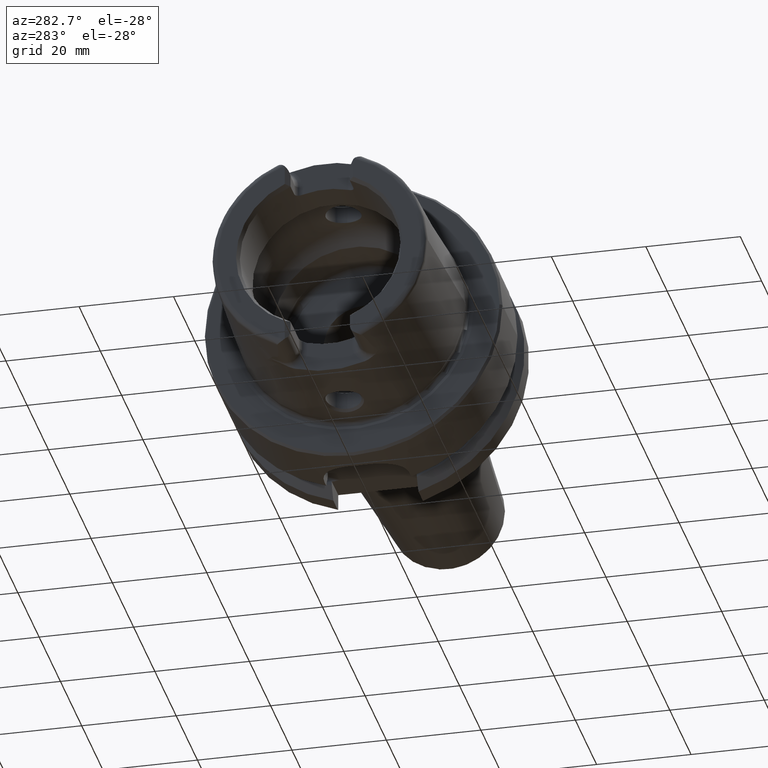
[diagram: clean part render]
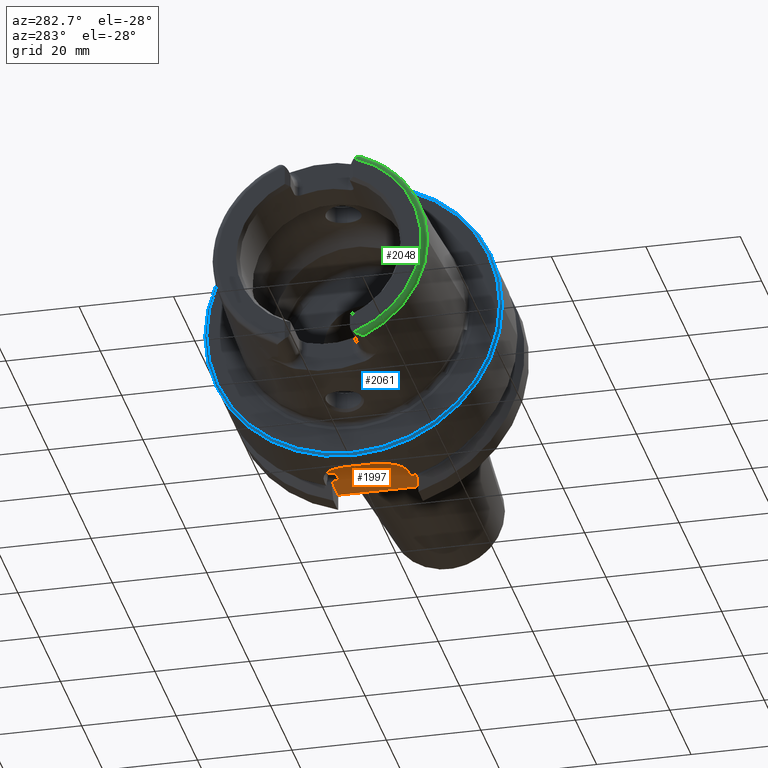
[diagram: same view with three faces highlighted in distinct colors, each labeled with its STEP entity id]
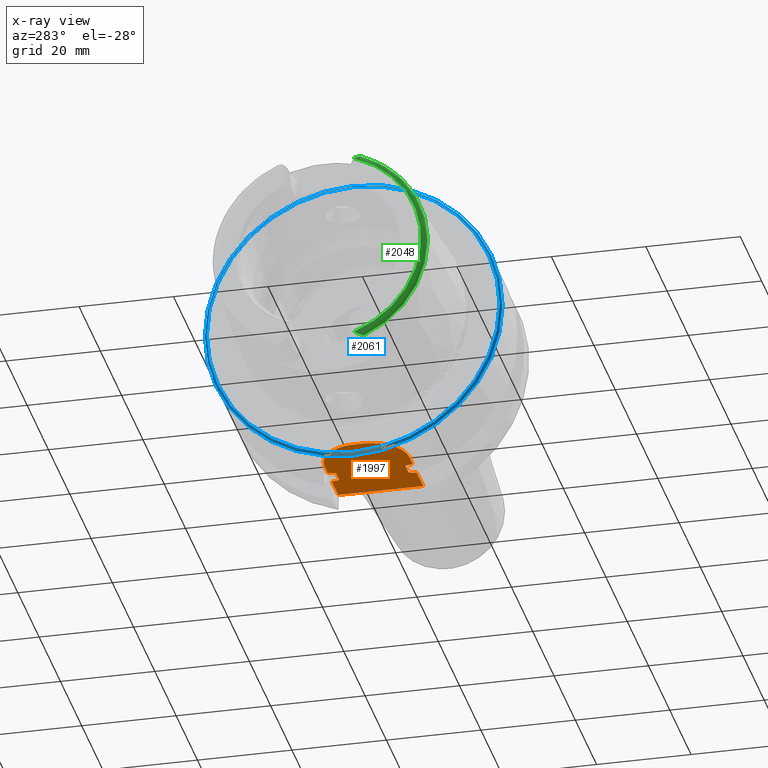
[diagram: x-ray of the same camera — body ghosted, the three highlighted faces saturated]
A machine part, auxiliary view with three faces highlighted in distinct colors.
The next image is the same camera in x-ray (body ghosted, the three faces saturated) — at least one of them is partly hidden behind the body in this view.
Their STEP definitions:

[orange] entity #1997 — the highlighted planar face has unit normal (0, 0, 1).
#67=B_SPLINE_CURVE_WITH_KNOTS('',3,(#3952,#3953,#3954,#3955,#3956,#3957,
#3958,#3959,#3960,#3961),.UNSPECIFIED.,.F.,.F.,(4,2,2,2,4),(0.15835931245442,
0.289228035148658,0.316691561230897,0.323545183976989,0.328785692776271),
 .UNSPECIFIED.);
#68=B_SPLINE_CURVE_WITH_KNOTS('',3,(#3973,#3974,#3975,#3976,#3977,#3978,
#3979,#3980,#3981,#3982),.UNSPECIFIED.,.F.,.F.,(4,2,2,2,4),(0.328785692776271,
0.334026201575553,0.340879824321645,0.368343350403884,0.499212073098123),
 .UNSPECIFIED.);
#69=B_SPLINE_CURVE_WITH_KNOTS('',3,(#3985,#3986,#3987,#3988,#3989,#3990,
#3991,#3992,#3993,#3994),.UNSPECIFIED.,.F.,.F.,(4,2,2,2,4),(0.15835931245442,
0.289228035148658,0.316691561230897,0.323545183976988,0.32878569277627),
 .UNSPECIFIED.);
#70=B_SPLINE_CURVE_WITH_KNOTS('',3,(#3996,#3997,#3998,#3999,#4000,#4001,
#4002,#4003,#4004,#4005),.UNSPECIFIED.,.F.,.F.,(4,2,2,2,4),(0.32878569277627,
0.334026201575552,0.340879824321644,0.368343350403882,0.49921207309812),
 .UNSPECIFIED.);
#140=LINE('',#2994,#246);
#194=LINE('',#3906,#300);
#196=LINE('',#3936,#302);
#199=LINE('',#3963,#305);
#200=LINE('',#3967,#306);
#201=LINE('',#3971,#307);
#202=LINE('',#3984,#308);
#203=LINE('',#4006,#309);
#246=VECTOR('',#2397,10.);
#300=VECTOR('',#2631,10.);
#302=VECTOR('',#2635,10.);
#305=VECTOR('',#2640,10.);
#306=VECTOR('',#2643,10.);
#307=VECTOR('',#2646,10.);
#308=VECTOR('',#2647,10.);
#309=VECTOR('',#2648,10.);
#444=FACE_OUTER_BOUND('',#570,.T.);
#570=EDGE_LOOP('',(#1551,#1552,#1553,#1554,#1555,#1556,#1557,#1558,#1559,
#1560,#1561,#1562,#1563,#1564));
#704=CIRCLE('',#2206,8.);
#705=CIRCLE('',#2207,8.);
#784=VERTEX_POINT('',#2991);
#785=VERTEX_POINT('',#2993);
#895=VERTEX_POINT('',#3901);
#899=VERTEX_POINT('',#3935);
#903=VERTEX_POINT('',#3950);
#904=VERTEX_POINT('',#3951);
#905=VERTEX_POINT('',#3962);
#906=VERTEX_POINT('',#3964);
#907=VERTEX_POINT('',#3966);
#908=VERTEX_POINT('',#3968);
#909=VERTEX_POINT('',#3970);
#910=VERTEX_POINT('',#3972);
#911=VERTEX_POINT('',#3983);
#912=VERTEX_POINT('',#3995);
#992=EDGE_CURVE('',#784,#785,#140,.T.);
#1140=EDGE_CURVE('',#895,#784,#194,.T.);
#1145=EDGE_CURVE('',#785,#899,#196,.T.);
#1150=EDGE_CURVE('',#903,#904,#67,.T.);
#1151=EDGE_CURVE('',#905,#903,#199,.T.);
#1152=EDGE_CURVE('',#906,#905,#704,.T.);
#1153=EDGE_CURVE('',#907,#906,#200,.T.);
#1154=EDGE_CURVE('',#908,#907,#705,.T.);
#1155=EDGE_CURVE('',#909,#908,#201,.T.);
#1156=EDGE_CURVE('',#910,#909,#68,.T.);
#1157=EDGE_CURVE('',#911,#910,#202,.T.);
#1158=EDGE_CURVE('',#899,#911,#69,.T.);
#1159=EDGE_CURVE('',#912,#895,#70,.T.);
#1160=EDGE_CURVE('',#904,#912,#203,.T.);
#1551=ORIENTED_EDGE('',*,*,#1150,.F.);
#1552=ORIENTED_EDGE('',*,*,#1151,.F.);
#1553=ORIENTED_EDGE('',*,*,#1152,.F.);
#1554=ORIENTED_EDGE('',*,*,#1153,.F.);
#1555=ORIENTED_EDGE('',*,*,#1154,.F.);
#1556=ORIENTED_EDGE('',*,*,#1155,.F.);
#1557=ORIENTED_EDGE('',*,*,#1156,.F.);
#1558=ORIENTED_EDGE('',*,*,#1157,.F.);
#1559=ORIENTED_EDGE('',*,*,#1158,.F.);
#1560=ORIENTED_EDGE('',*,*,#1145,.F.);
#1561=ORIENTED_EDGE('',*,*,#992,.F.);
#1562=ORIENTED_EDGE('',*,*,#1140,.F.);
#1563=ORIENTED_EDGE('',*,*,#1159,.F.);
#1564=ORIENTED_EDGE('',*,*,#1160,.F.);
#1926=PLANE('',#2205);
#1997=ADVANCED_FACE('',(#444),#1926,.F.);
#2205=AXIS2_PLACEMENT_3D('',#3949,#2638,#2639);
#2206=AXIS2_PLACEMENT_3D('',#3965,#2641,#2642);
#2207=AXIS2_PLACEMENT_3D('',#3969,#2644,#2645);
#2397=DIRECTION('',(0.,1.,0.));
#2631=DIRECTION('',(1.,-2.56205313375036E-16,0.));
#2635=DIRECTION('',(-1.,2.56205313375036E-16,0.));
#2638=DIRECTION('center_axis',(0.,0.,1.));
#2639=DIRECTION('ref_axis',(1.,0.,0.));
#2640=DIRECTION('',(1.,-2.56205313375036E-16,0.));
#2641=DIRECTION('center_axis',(0.,0.,1.));
#2642=DIRECTION('ref_axis',(-1.,-2.42861286636753E-16,0.));
#2643=DIRECTION('',(0.,-1.,0.));
#2644=DIRECTION('center_axis',(0.,0.,1.));
#2645=DIRECTION('ref_axis',(0.,1.,0.));
#2646=DIRECTION('',(-1.,2.56205313375036E-16,0.));
#2647=DIRECTION('',(-1.,0.,0.));
#2648=DIRECTION('',(1.,0.,0.));
#2991=CARTESIAN_POINT('',(26.,-9.,-26.5));
#2993=CARTESIAN_POINT('',(26.,9.,-26.5));
#2994=CARTESIAN_POINT('',(26.,1.94289029309402E-15,-26.5));
#3901=CARTESIAN_POINT('',(19.8748205133158,-9.,-26.5));
#3906=CARTESIAN_POINT('',(13.,-9.,-26.5));
#3935=CARTESIAN_POINT('',(19.8748205133158,9.,-26.5));
#3936=CARTESIAN_POINT('',(26.,9.,-26.5));
#3949=CARTESIAN_POINT('Origin',(15.5,3.88578058618805E-15,-26.5));
#3950=CARTESIAN_POINT('',(16.1251794866842,-9.,-26.5));
#3951=CARTESIAN_POINT('',(16.625,-7.34846922834952,-26.5));
#3952=CARTESIAN_POINT('Ctrl Pts',(16.1251794866842,-9.,-26.5));
#3953=CARTESIAN_POINT('Ctrl Pts',(16.12898241235,-8.55877260788573,-26.5));
#3954=CARTESIAN_POINT('Ctrl Pts',(16.1819334034884,-8.04136347440828,-26.5));
#3955=CARTESIAN_POINT('Ctrl Pts',(16.3906456489289,-7.5566112023157,-26.5));
#3956=CARTESIAN_POINT('Ctrl Pts',(16.4411490019356,-7.4590543697872,-26.5));
#3957=CARTESIAN_POINT('Ctrl Pts',(16.5270295504762,-7.38349170057081,-26.5));
#3958=CARTESIAN_POINT('Ctrl Pts',(16.5496994821687,-7.36807649661538,-26.5));
#3959=CARTESIAN_POINT('Ctrl Pts',(16.587038394856,-7.35287762173868,-26.5));
#3960=CARTESIAN_POINT('Ctrl Pts',(16.6075316373357,-7.34846922834952,-26.5));
#3961=CARTESIAN_POINT('Ctrl Pts',(16.625,-7.34846922834952,-26.5));
#3962=CARTESIAN_POINT('',(13.,-9.,-26.5));
#3963=CARTESIAN_POINT('',(13.,-9.,-26.5));
#3964=CARTESIAN_POINT('',(5.,-0.999999999999999,-26.5));
#3965=CARTESIAN_POINT('Origin',(13.,-0.999999999999997,-26.5));
#3966=CARTESIAN_POINT('',(5.,1.,-26.5));
#3967=CARTESIAN_POINT('',(5.,1.,-26.5));
#3968=CARTESIAN_POINT('',(13.,9.00000000000001,-26.5));
#3969=CARTESIAN_POINT('Origin',(13.,1.,-26.5));
#3970=CARTESIAN_POINT('',(16.1251794866842,9.,-26.5));
#3971=CARTESIAN_POINT('',(26.,9.,-26.5));
#3972=CARTESIAN_POINT('',(16.625,7.34846922834952,-26.5));
#3973=CARTESIAN_POINT('Ctrl Pts',(16.625,7.34846922834952,-26.5));
#3974=CARTESIAN_POINT('Ctrl Pts',(16.6075316373357,7.34846922834952,-26.5));
#3975=CARTESIAN_POINT('Ctrl Pts',(16.587038394856,7.35287762173868,-26.5));
#3976=CARTESIAN_POINT('Ctrl Pts',(16.5496994821687,7.36807649661538,-26.5));
#3977=CARTESIAN_POINT('Ctrl Pts',(16.5270295504762,7.38349170057081,-26.5));
#3978=CARTESIAN_POINT('Ctrl Pts',(16.4411490019356,7.4590543697872,-26.5));
#3979=CARTESIAN_POINT('Ctrl Pts',(16.3906456489289,7.5566112023157,-26.5));
#3980=CARTESIAN_POINT('Ctrl Pts',(16.1819334034884,8.04136347440828,-26.5));
#3981=CARTESIAN_POINT('Ctrl Pts',(16.12898241235,8.55877260788573,-26.5));
#3982=CARTESIAN_POINT('Ctrl Pts',(16.1251794866842,9.,-26.5));
#3983=CARTESIAN_POINT('',(19.375,7.34846922834952,-26.5));
#3984=CARTESIAN_POINT('',(18.,7.34846922834952,-26.5));
#3985=CARTESIAN_POINT('Ctrl Pts',(19.8748205133158,9.,-26.5));
#3986=CARTESIAN_POINT('Ctrl Pts',(19.87101758765,8.55877260788573,-26.5));
#3987=CARTESIAN_POINT('Ctrl Pts',(19.8180665965116,8.04136347440828,-26.5));
#3988=CARTESIAN_POINT('Ctrl Pts',(19.6093543510711,7.5566112023157,-26.5));
#3989=CARTESIAN_POINT('Ctrl Pts',(19.5588509980644,7.45905436978719,-26.5));
#3990=CARTESIAN_POINT('Ctrl Pts',(19.4729704495238,7.38349170057082,-26.5));
#3991=CARTESIAN_POINT('Ctrl Pts',(19.4503005178313,7.3680764966154,-26.5));
#3992=CARTESIAN_POINT('Ctrl Pts',(19.412961605144,7.35287762173869,-26.5));
#3993=CARTESIAN_POINT('Ctrl Pts',(19.3924683626643,7.34846922834952,-26.5));
#3994=CARTESIAN_POINT('Ctrl Pts',(19.375,7.34846922834952,-26.5));
#3995=CARTESIAN_POINT('',(19.375,-7.34846922834952,-26.5));
#3996=CARTESIAN_POINT('Ctrl Pts',(19.375,-7.34846922834952,-26.5));
#3997=CARTESIAN_POINT('Ctrl Pts',(19.3924683626643,-7.34846922834952,-26.5));
#3998=CARTESIAN_POINT('Ctrl Pts',(19.412961605144,-7.35287762173869,-26.5));
#3999=CARTESIAN_POINT('Ctrl Pts',(19.4503005178313,-7.3680764966154,-26.5));
#4000=CARTESIAN_POINT('Ctrl Pts',(19.4729704495238,-7.38349170057082,-26.5));
#4001=CARTESIAN_POINT('Ctrl Pts',(19.5588509980644,-7.45905436978719,-26.5));
#4002=CARTESIAN_POINT('Ctrl Pts',(19.6093543510711,-7.5566112023157,-26.5));
#4003=CARTESIAN_POINT('Ctrl Pts',(19.8180665965116,-8.04136347440828,-26.5));
#4004=CARTESIAN_POINT('Ctrl Pts',(19.87101758765,-8.55877260788573,-26.5));
#4005=CARTESIAN_POINT('Ctrl Pts',(19.8748205133158,-9.,-26.5));
#4006=CARTESIAN_POINT('',(18.,-7.34846922834952,-26.5));

[blue] entity #2061 — the highlighted conical surface has half-angle 45 deg.
#109=CONICAL_SURFACE('',#2329,31.25,0.785398163397447);
#237=LINE('',#4388,#343);
#343=VECTOR('',#2926,31.25);
#508=FACE_OUTER_BOUND('',#639,.T.);
#639=EDGE_LOOP('',(#1884,#1885,#1886,#1887));
#722=CIRCLE('',#2251,31.5);
#763=CIRCLE('',#2328,31.);
#940=VERTEX_POINT('',#4229);
#966=VERTEX_POINT('',#4385);
#1216=EDGE_CURVE('',#940,#940,#722,.T.);
#1273=EDGE_CURVE('',#966,#966,#763,.T.);
#1274=EDGE_CURVE('',#940,#966,#237,.T.);
#1884=ORIENTED_EDGE('',*,*,#1216,.F.);
#1885=ORIENTED_EDGE('',*,*,#1274,.T.);
#1886=ORIENTED_EDGE('',*,*,#1273,.T.);
#1887=ORIENTED_EDGE('',*,*,#1274,.F.);
#2061=ADVANCED_FACE('',(#508),#109,.T.);
#2251=AXIS2_PLACEMENT_3D('',#4231,#2756,#2757);
#2328=AXIS2_PLACEMENT_3D('',#4386,#2922,#2923);
#2329=AXIS2_PLACEMENT_3D('',#4387,#2924,#2925);
#2756=DIRECTION('center_axis',(1.,0.,0.));
#2757=DIRECTION('ref_axis',(0.,0.,-1.));
#2922=DIRECTION('center_axis',(1.,0.,0.));
#2923=DIRECTION('ref_axis',(0.,0.,-1.));
#2924=DIRECTION('center_axis',(1.,0.,0.));
#2925=DIRECTION('ref_axis',(0.,1.,0.));
#2926=DIRECTION('',(-0.707106781186549,0.707106781186546,8.65956056235492E-17));
#4229=CARTESIAN_POINT('',(0.5,-31.5,-3.85763741731416E-15));
#4231=CARTESIAN_POINT('Origin',(0.5,0.,0.));
#4385=CARTESIAN_POINT('',(-5.89805981832114E-16,-31.,-3.7964050773568E-15));
#4386=CARTESIAN_POINT('Origin',(0.,0.,0.));
#4387=CARTESIAN_POINT('Origin',(0.25,0.,0.));
#4388=CARTESIAN_POINT('',(0.25,-31.25,-3.82702124733548E-15));

[green] entity #2048 — the highlighted toroidal blend (fillet) surface has major radius 21.576 mm and minor (blend) radius 1.2 mm.
#32=B_SPLINE_CURVE_WITH_KNOTS('',3,(#3062,#3063,#3064,#3065,#3066,#3067,
#3068,#3069,#3070,#3071,#3072,#3073),.UNSPECIFIED.,.F.,.F.,(4,2,2,2,2,4),
(-0.196612183526961,-0.162100751777108,-0.0988537843219417,-0.0492481970353068,
-0.0201985054494333,0.),.UNSPECIFIED.);
#35=B_SPLINE_CURVE_WITH_KNOTS('',3,(#3153,#3154,#3155,#3156,#3157,#3158,
#3159,#3160,#3161,#3162,#3163,#3164),.UNSPECIFIED.,.F.,.F.,(4,2,2,2,2,4),
(-0.440016298339346,-0.413819168091726,-0.38684223146412,-0.314176502280688,
-0.242048966230796,-0.191409762337977),.UNSPECIFIED.);
#129=TOROIDAL_SURFACE('',#2298,21.5760400159857,1.2);
#495=FACE_OUTER_BOUND('',#622,.T.);
#622=EDGE_LOOP('',(#1829,#1830,#1831,#1832,#1833));
#676=CIRCLE('',#2157,22.7745368271334);
#680=CIRCLE('',#2161,22.7745368271334);
#744=CIRCLE('',#2295,21.5760400159857);
#804=VERTEX_POINT('',#3042);
#805=VERTEX_POINT('',#3061);
#824=VERTEX_POINT('',#3150);
#825=VERTEX_POINT('',#3152);
#840=VERTEX_POINT('',#3353);
#1016=EDGE_CURVE('',#805,#804,#32,.T.);
#1041=EDGE_CURVE('',#825,#824,#35,.T.);
#1061=EDGE_CURVE('',#840,#804,#676,.T.);
#1073=EDGE_CURVE('',#825,#840,#680,.T.);
#1249=EDGE_CURVE('',#824,#805,#744,.T.);
#1829=ORIENTED_EDGE('',*,*,#1041,.T.);
#1830=ORIENTED_EDGE('',*,*,#1249,.T.);
#1831=ORIENTED_EDGE('',*,*,#1016,.T.);
#1832=ORIENTED_EDGE('',*,*,#1061,.F.);
#1833=ORIENTED_EDGE('',*,*,#1073,.F.);
#2048=ADVANCED_FACE('',(#495),#129,.T.);
#2157=AXIS2_PLACEMENT_3D('',#3355,#2516,#2517);
#2161=AXIS2_PLACEMENT_3D('',#3459,#2524,#2525);
#2295=AXIS2_PLACEMENT_3D('',#4333,#2851,#2852);
#2298=AXIS2_PLACEMENT_3D('',#4336,#2857,#2858);
#2516=DIRECTION('center_axis',(1.,0.,0.));
#2517=DIRECTION('ref_axis',(0.,0.,-1.));
#2524=DIRECTION('center_axis',(1.,0.,0.));
#2525=DIRECTION('ref_axis',(0.,0.,-1.));
#2851=DIRECTION('center_axis',(1.,0.,0.));
#2852=DIRECTION('ref_axis',(0.,0.,-1.));
#2857=DIRECTION('center_axis',(1.,0.,0.));
#2858=DIRECTION('ref_axis',(0.,0.,-1.));
#3042=CARTESIAN_POINT('',(-30.8600449304182,-9.1175788960984,-20.8698175067219));
#3061=CARTESIAN_POINT('',(-32.,-7.39118810947246,-20.2705658801576));
#3062=CARTESIAN_POINT('Ctrl Pts',(-32.,-7.39118810947247,-20.2705658801576));
#3063=CARTESIAN_POINT('Ctrl Pts',(-32.,-7.51057646079925,-20.3626402436877));
#3064=CARTESIAN_POINT('Ctrl Pts',(-31.9798323447024,-7.63713759811651,-20.4450895592776));
#3065=CARTESIAN_POINT('Ctrl Pts',(-31.8795915966629,-8.00411514663101,-20.6460540241957));
#3066=CARTESIAN_POINT('Ctrl Pts',(-31.7662291944519,-8.24534617868917,-20.7330636375648));
#3067=CARTESIAN_POINT('Ctrl Pts',(-31.5260503396065,-8.62641311167603,-20.8272571305318));
#3068=CARTESIAN_POINT('Ctrl Pts',(-31.4080214744472,-8.77500391332017,-20.8477181028241));
#3069=CARTESIAN_POINT('Ctrl Pts',(-31.2168511506693,-8.95347341138424,-20.8640491182849));
#3070=CARTESIAN_POINT('Ctrl Pts',(-31.1371144343332,-9.01480627610083,-20.8671499279665));
#3071=CARTESIAN_POINT('Ctrl Pts',(-30.9904836833853,-9.08806135889972,-20.8694907892639));
#3072=CARTESIAN_POINT('Ctrl Pts',(-30.9268776870879,-9.10942530024495,-20.8697257132045));
#3073=CARTESIAN_POINT('Ctrl Pts',(-30.8600449304182,-9.11757889609838,-20.8698175067219));
#3150=CARTESIAN_POINT('',(-32.,-7.39118810947246,20.2705658801576));
#3152=CARTESIAN_POINT('',(-30.8600449304182,-9.1175788960984,20.8698175067219));
#3153=CARTESIAN_POINT('Ctrl Pts',(-30.8600449304182,-9.11757889609839,20.8698175067219));
#3154=CARTESIAN_POINT('Ctrl Pts',(-30.9283853966267,-9.1092413596916,20.8697236423942));
#3155=CARTESIAN_POINT('Ctrl Pts',(-30.9933437959442,-9.08709005778456,20.8694809526083));
#3156=CARTESIAN_POINT('Ctrl Pts',(-31.1177754091763,-9.02396510410894,20.8674193162914));
#3157=CARTESIAN_POINT('Ctrl Pts',(-31.1770034834694,-8.98246838908717,20.8654817144325));
#3158=CARTESIAN_POINT('Ctrl Pts',(-31.3775872414353,-8.81520504288704,20.8530880014962));
#3159=CARTESIAN_POINT('Ctrl Pts',(-31.521057678942,-8.63827412284131,20.8318261586711));
#3160=CARTESIAN_POINT('Ctrl Pts',(-31.7694065050575,-8.23592790359805,20.7289177452773));
#3161=CARTESIAN_POINT('Ctrl Pts',(-31.8689043999789,-8.02084936775806,20.6497346714256));
#3162=CARTESIAN_POINT('Ctrl Pts',(-31.9746332690681,-7.66799906728034,20.4648878758955));
#3163=CARTESIAN_POINT('Ctrl Pts',(-32.,-7.52524774054413,20.3739549886328));
#3164=CARTESIAN_POINT('Ctrl Pts',(-32.,-7.39118810947247,20.2705658801576));
#3353=CARTESIAN_POINT('',(-30.8600449304182,-22.7745368271334,-2.78907636274124E-15));
#3355=CARTESIAN_POINT('Origin',(-30.8600449304182,0.,0.));
#3459=CARTESIAN_POINT('Origin',(-30.8600449304182,0.,0.));
#4333=CARTESIAN_POINT('Origin',(-32.,0.,0.));
#4336=CARTESIAN_POINT('Origin',(-30.8,0.,0.));